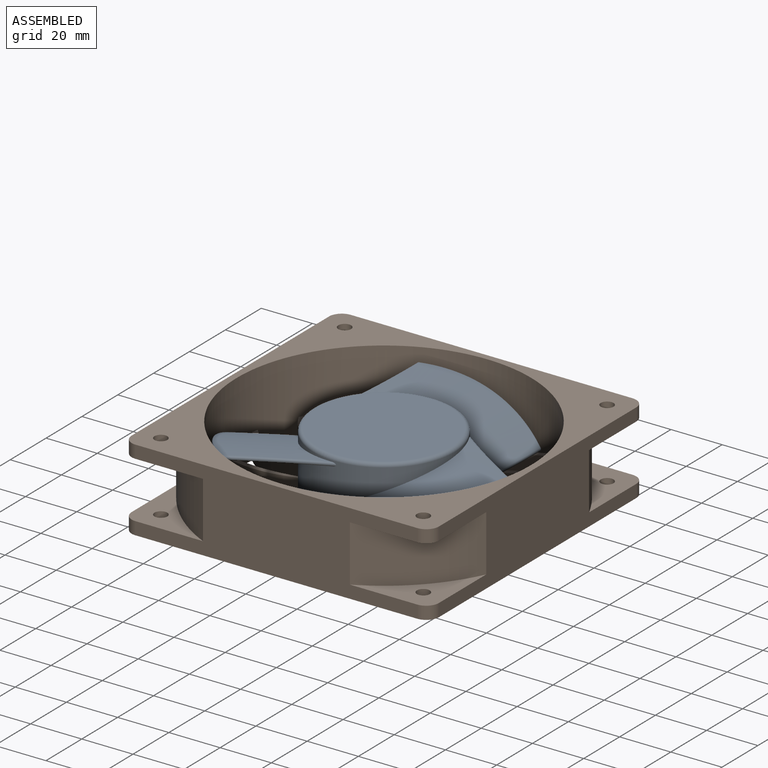
[diagram: assembled view]
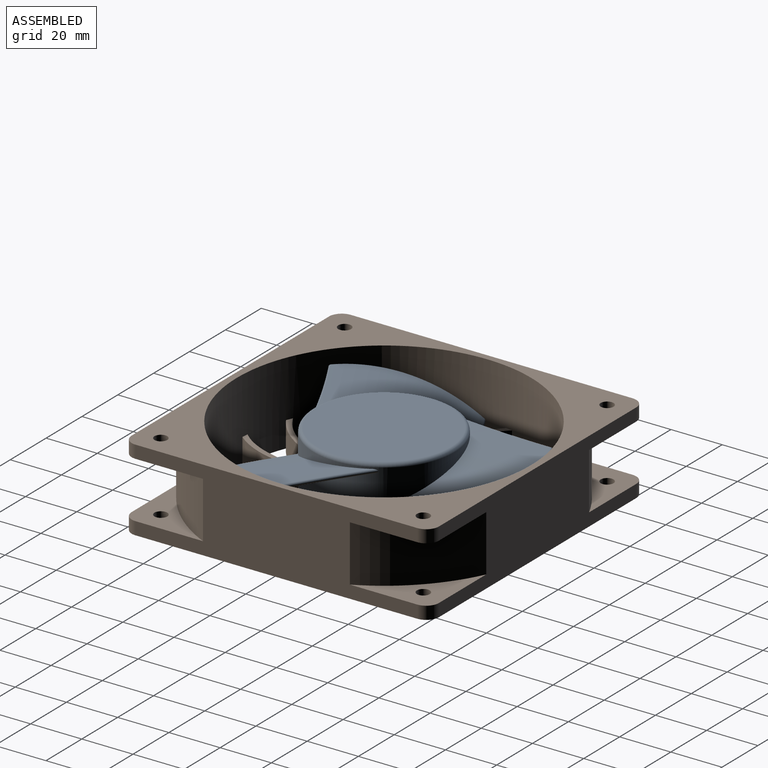
[diagram: assembled view, second angle]
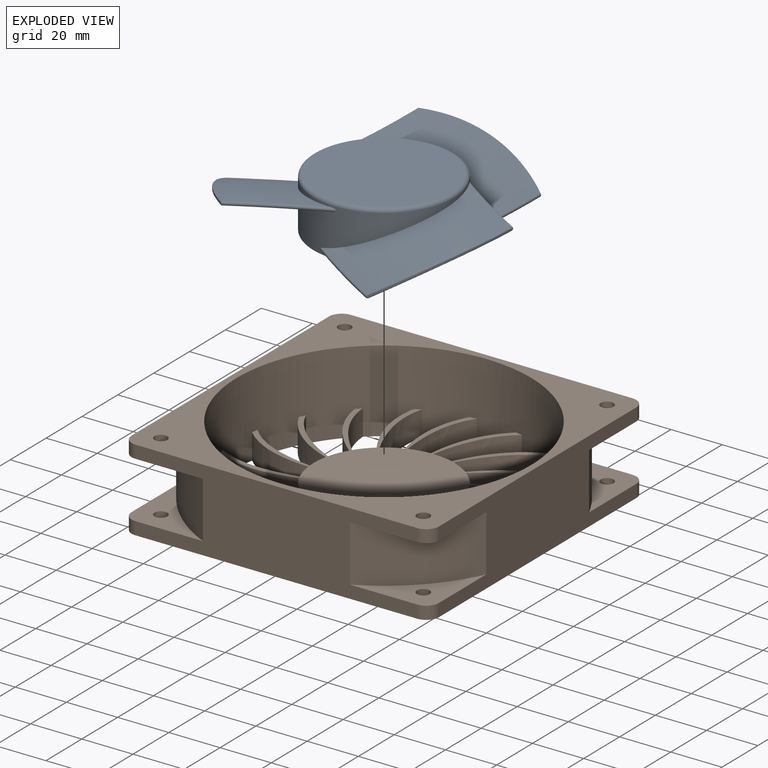
[diagram: exploded view]
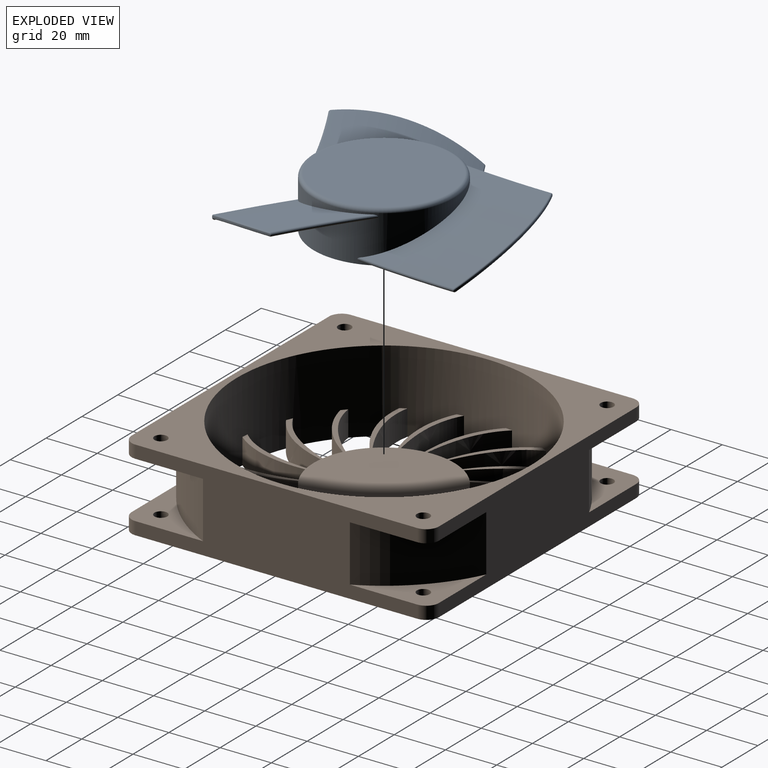
[diagram: exploded view, second angle]
FCSTD DOCUMENT  (FreeCAD 1.0R39109 (Git))
Label: Lüfter120x120x32
License: All rights reserved
LicenseURL: https://en.wikipedia.org/wiki/All_rights_reserved
objects: Sketcher::SketchObject×7, PartDesign::Groove×2, PartDesign::PolarPattern×2, PartDesign::Body×2, PartDesign::Fillet×2, App::Link×2, App::FeaturePython×2, PartDesign::Pad×1, PartDesign::Pocket×1, PartDesign::Revolution×1, PartDesign::Plane×1, PartDesign::AdditivePipe×1, Assembly::JointGroup×1, Assembly::AssemblyObject×1
note: 45 computed .brp shape members not serialized (recipe doc carries the construction recipe); baked Part::Feature solids carry a one-line shape summary decoded from their .brp

FEATURE [Sketcher::SketchObject] Sketch
  ArcFitTolerance = 1e-06
  AttachmentSupport = -> [XY_Plane]
  FullyConstrained = true
  MakeInternals = false
  MapMode = 5
  sketch-geometry (22):
    g0: LineSegment StartX=-55 StartY=-60 StartZ=0 EndX=55 EndY=-60 EndZ=0
    g1: LineSegment StartX=60 StartY=-55 StartZ=0 EndX=60 EndY=55 EndZ=0
    g2: LineSegment StartX=55 StartY=60 StartZ=0 EndX=-55 EndY=60 EndZ=0
    g3: LineSegment StartX=-60 StartY=55 StartZ=0 EndX=-60 EndY=-55 EndZ=0
    g4: GeomPoint [constr] X=7e-16 Y=1e-15 Z=0
    g5: ArcOfCircle CenterX=55 CenterY=55 CenterZ=0 NormalX=0 NormalY=0 NormalZ=1 AngleXU=0 Radius=5 StartAngle=6e-16 EndAngle=1.5708
    g6: GeomPoint [constr] X=60 Y=60 Z=0
    g7: ArcOfCircle CenterX=55 CenterY=-55 CenterZ=0 NormalX=0 NormalY=0 NormalZ=1 AngleXU=0 Radius=5 StartAngle=4.71239 EndAngle=6.28319
    g8: GeomPoint [constr] X=60 Y=-60 Z=0
    g9: ArcOfCircle CenterX=-55 CenterY=-55 CenterZ=0 NormalX=0 NormalY=0 NormalZ=1 AngleXU=0 Radius=5 StartAngle=3.14159 EndAngle=4.71239
    g10: GeomPoint [constr] X=-60 Y=-60 Z=0
    g11: ArcOfCircle CenterX=-55 CenterY=55 CenterZ=0 NormalX=0 NormalY=0 NormalZ=1 AngleXU=0 Radius=5 StartAngle=1.5708 EndAngle=3.14159
    g12: GeomPoint [constr] X=-60 Y=60 Z=0
    g13: LineSegment [constr] StartX=51.25 StartY=-51.25 StartZ=0 EndX=51.25 EndY=51.25 EndZ=0
    g14: LineSegment [constr] StartX=51.25 StartY=51.25 StartZ=0 EndX=-51.25 EndY=51.25 EndZ=0
    g15: LineSegment [constr] StartX=-51.25 StartY=51.25 StartZ=0 EndX=-51.25 EndY=-51.25 EndZ=0
    g16: LineSegment [constr] StartX=-51.25 StartY=-51.25 StartZ=0 EndX=51.25 EndY=-51.25 EndZ=0
    g17: GeomPoint [constr] X=7e-16 Y=1e-15 Z=0
    g18: Circle CenterX=-51.25 CenterY=51.25 CenterZ=0 NormalX=0 NormalY=0 NormalZ=1 AngleXU=0 Radius=2.5
    g19: Circle CenterX=51.25 CenterY=51.25 CenterZ=0 NormalX=0 NormalY=0 NormalZ=1 AngleXU=0 Radius=2.5
    g20: Circle CenterX=51.25 CenterY=-51.25 CenterZ=0 NormalX=0 NormalY=0 NormalZ=1 AngleXU=0 Radius=2.5
    g21: Circle CenterX=-51.25 CenterY=-51.25 CenterZ=0 NormalX=0 NormalY=0 NormalZ=1 AngleXU=0 Radius=2.5
  constraints (48):
    c: Horizontal(g0)
    c: Horizontal(g2)
    c: Vertical(g1)
    c: Vertical(g3)
    c: Symmetric(g6,g10,g4)
    c: Distance(g8,g10) = 120
    c: Coincident(g4,g-1)
    c: PointOnObject(g6,g1)
    c: PointOnObject(g6,g2)
    c: Tangent(g1,g5) = -1.5708
    c: Tangent(g2,g5) = -1.5708
    c: PointOnObject(g8,g0)
    c: PointOnObject(g8,g1)
    c: Tangent(g0,g7) = -1.5708
    c: Tangent(g1,g7) = -1.5708
    c: PointOnObject(g10,g0)
    c: PointOnObject(g10,g3)
    c: Tangent(g0,g9) = -1.5708
    c: Tangent(g3,g9) = -1.5708
    c: PointOnObject(g12,g2)
    c: PointOnObject(g12,g3)
    c: Tangent(g2,g11) = -1.5708
    c: Tangent(g3,g11) = -1.5708
    c: Equal(g11,g5)
    c: Equal(g5,g7)
    c: Equal(g7,g9)
    c: Radius(g11) = 5
    c: Equal(g0,g1)
    c: Coincident(g13,g14)
    c: Coincident(g14,g15)
    c: Coincident(g15,g16)
    c: Coincident(g16,g13)
    c: Vertical(g13)
    c: Vertical(g15)
    c: Horizontal(g14)
    c: Horizontal(g16)
    c: Symmetric(g15,g13,g17)
    c: Coincident(g17,g4)
    c: Equal(g15,g14)
    c: Coincident(g18,g14)
    c: Coincident(g19,g13)
    c: Coincident(g20,g13)
    c: Coincident(g21,g15)
    c: Equal(g21,g19)
    c: Equal(g19,g18)
    c: Equal(g21,g20)
    c: Diameter(g20) = 5
    c: Distance(g13,g19) = 100
FEATURE [PartDesign::Pad] Pad
  Direction = (0,0,1)
  Length = 32
  Length2 = 10
  Midplane = true
  Profile = -> Sketch
  ReferenceAxis = -> Sketch [N_Axis]
  Refine = true
  Suppressed = false
  Type = 0
FEATURE [Sketcher::SketchObject] Sketch001
  ArcFitTolerance = 1e-06
  AttachmentSupport = -> [YZ_Plane]
  ExternalGeometry = -> [Pad]
  FullyConstrained = true
  MakeInternals = false
  MapMode = 5
  Placement = pos=(0,0,0) rot=(0.57735,0.57735,0.57735;2.0944rad)
  sketch-geometry (9):
    g0: LineSegment StartX=-88.5 StartY=-11 StartZ=0 EndX=-66.5 EndY=-11 EndZ=0
    g1: LineSegment StartX=-66.5 StartY=-11 StartZ=0 EndX=-66.5 EndY=11 EndZ=0
    g2: LineSegment StartX=-66.5 StartY=11 StartZ=0 EndX=-88.5 EndY=11 EndZ=0
    g3: LineSegment StartX=-88.5 StartY=11 StartZ=0 EndX=-88.5 EndY=-11 EndZ=0
    g4: GeomPoint [constr] X=-77.5 Y=0 Z=0
    g5: LineSegment StartX=0 StartY=16 StartZ=0 EndX=-57.5 EndY=16 EndZ=0
    g6: LineSegment StartX=-57.5 StartY=16 StartZ=0 EndX=-57.5 EndY=-6 EndZ=0
    g7: LineSegment StartX=-57.5 StartY=-6 StartZ=0 EndX=0 EndY=-6 EndZ=0
    g8: LineSegment StartX=0 StartY=-6 StartZ=0 EndX=0 EndY=16 EndZ=0
  constraints (25):
    c: Coincident(g0,g1)
    c: Coincident(g1,g2)
    c: Coincident(g2,g3)
    c: Coincident(g3,g0)
    c: Horizontal(g0)
    c: Horizontal(g2)
    c: Vertical(g1)
    c: Vertical(g3)
    c: Symmetric(g2,g0,g4)
    c: PointOnObject(g4,g-1)
    c: Equal(g1,g2)
    c: DistanceY(g3,g3) = 22
    c: Distance(g-1,g1) = 66.5
    c: Coincident(g5,g6)
    c: Coincident(g6,g7)
    c: Coincident(g7,g8)
    c: Coincident(g8,g5)
    c: Horizontal(g5)
    c: Horizontal(g7)
    c: Vertical(g6)
    c: Vertical(g8)
    c: PointOnObject(g5,g-2)
    c: Distance(g-1,g6) = 57.5
    c: Distance(g-3,g7) = 10
    c: PointOnObject(g-4,g5)
FEATURE [PartDesign::Groove] Groove
  Angle = 360
  Angle2 = 60
  Axis = (0,0,1)
  Base = (0,0,0)
  BaseFeature = -> Pad
  Profile = -> Sketch001
  ReferenceAxis = -> Sketch001 [V_Axis]
  Refine = true
  Reversed = true
  Suppressed = false
  Type = 0
FEATURE [Sketcher::SketchObject] Sketch002
  ArcFitTolerance = 1e-06
  AttachmentSupport = -> [Groove]
  ExternalGeometry = -> [Groove]
  FullyConstrained = true
  MakeInternals = false
  MapMode = 5
  Placement = pos=(0,0,-6) rot=(0,0,1;0rad)
  sketch-geometry (17):
    g0: Circle [constr] CenterX=0 CenterY=0 CenterZ=0 NormalX=0 NormalY=0 NormalZ=1 AngleXU=0 Radius=27.5
    g1: Circle [constr] CenterX=0 CenterY=0 CenterZ=0 NormalX=0 NormalY=0 NormalZ=1 AngleXU=0 Radius=57.5
    g2: LineSegment [constr] StartX=0 StartY=0 StartZ=0 EndX=0 EndY=27.5 EndZ=0
    g3: Circle [constr] CenterX=0 CenterY=27.5 CenterZ=0 NormalX=0 NormalY=0 NormalZ=1 AngleXU=0 Radius=1
    g4: Circle [constr] CenterX=4.25 CenterY=47.76 CenterZ=0 NormalX=0 NormalY=0 NormalZ=1 AngleXU=0 Radius=1
    g5: Circle [constr] CenterX=15 CenterY=55.509 CenterZ=0 NormalX=0 NormalY=0 NormalZ=1 AngleXU=0 Radius=1
    g6: BSplineCurve PolesCount=3 KnotsCount=2 Degree=2 IsPeriodic=0
    g7: GeomPoint [constr] X=0 Y=27.5 Z=0
    g8: GeomPoint [constr] X=15 Y=55.509 Z=0
    g9: Circle [constr] CenterX=8 CenterY=26.3106 CenterZ=0 NormalX=0 NormalY=0 NormalZ=1 AngleXU=0 Radius=1
    g10: Circle [constr] CenterX=15.75 CenterY=43.17 CenterZ=0 NormalX=0 NormalY=0 NormalZ=1 AngleXU=0 Radius=1
    g11: Circle [constr] CenterX=30 CenterY=49.0536 CenterZ=0 NormalX=0 NormalY=0 NormalZ=1 AngleXU=0 Radius=1
    g12: BSplineCurve PolesCount=3 KnotsCount=2 Degree=2 IsPeriodic=0
    g13: GeomPoint [constr] X=8 Y=26.3106 Z=0
    g14: GeomPoint [constr] X=30 Y=49.0536 Z=0
    g15: ArcOfCircle CenterX=-2.2e-15 CenterY=-3.54e-14 CenterZ=0 NormalX=0 NormalY=0 NormalZ=1 AngleXU=0 Radius=27.5 StartAngle=1.27562 EndAngle=1.5708
    g16: ArcOfCircle CenterX=-2.2e-15 CenterY=-3.54e-14 CenterZ=0 NormalX=0 NormalY=0 NormalZ=1 AngleXU=0 Radius=57.5 StartAngle=1.02191 EndAngle=1.30687
  constraints (40):
    c: Diameter(g0) = 55
    c: Coincident(g0,g-1)
    c: Coincident(g1,g0)
    c: Coincident(g2,g0)
    c: PointOnObject(g2,g0)
    c: Vertical(g2)
    c: Weight(g3) = 1
    c: Equal(g3,g4)
    c: Equal(g3,g5)
    c: InternalAlignment(g3,g6)
    c: InternalAlignment(g4,g6)
    c: InternalAlignment(g5,g6)
    c: InternalAlignment(g7,g6)
    c: InternalAlignment(g8,g6)
    c: Coincident(g3,g2)
    c: PointOnObject(g5,g1)
    c: DistanceX(g6,g6) = 15
    c: Weight(g9) = 1
    c: Equal(g9,g10)
    c: Equal(g9,g11)
    c: InternalAlignment(g9,g12)
    c: InternalAlignment(g10,g12)
    c: InternalAlignment(g11,g12)
    c: InternalAlignment(g13,g12)
    c: InternalAlignment(g14,g12)
    c: PointOnObject(g9,g0)
    c: PointOnObject(g11,g1)
    c: DistanceX(g6,g12) = 15
    c: DistanceX(g6,g12) = 8
    c: DistanceX(g4,g10) = 11.5
    c: Coincident(g16,g15)
    c: Coincident(g16,g6)
    c: Coincident(g16,g12)
    c: Distance(g4,g-2) = 4.25
    c: DistanceY(g6,g4) = 20.26
    c: DistanceY(g6,g10) = 15.67
    c: DistanceX(g15,g12) = 30
    c: PointOnObject(g6,g15)
    c: Coincident(g15,g12)
    c: Tangent(g1,g-3)
FEATURE [PartDesign::Pocket] Pocket
  BaseFeature = -> Groove
  Direction = (0,0,-1)
  Length = 5
  Length2 = 5
  Profile = -> Sketch002
  ReferenceAxis = -> Sketch002 [N_Axis]
  Refine = true
  Suppressed = false
  Type = 1
FEATURE [PartDesign::PolarPattern] PolarPattern
  Angle = 360
  Axis = -> Sketch002 [N_Axis]
  BaseFeature = -> Pocket
  Mode = 0
  Occurrences = 19
  Offset = 120
  Originals = -> [Pocket]
  Refine = true
  Suppressed = false
  TransformMode = 0
FEATURE [PartDesign::Body] Body  label="Stator"
  AllowCompound = false
  Group = -> [Sketch,Pad,Sketch001,Groove,Sketch002,Pocket,PolarPattern]
  Origin = -> Origin
  Tip = -> PolarPattern
FEATURE [Sketcher::SketchObject] Sketch003
  ArcFitTolerance = 1e-06
  AttachmentSupport = -> [YZ_Plane001]
  FullyConstrained = true
  MakeInternals = false
  MapMode = 5
  Placement = pos=(0,0,0) rot=(0.57735,0.57735,0.57735;2.0944rad)
  sketch-geometry (4):
    g0: LineSegment StartX=0 StartY=20 StartZ=0 EndX=-27.5 EndY=20 EndZ=0
    g1: LineSegment StartX=-27.5 StartY=20 StartZ=0 EndX=-27.5 EndY=0 EndZ=0
    g2: LineSegment StartX=-27.5 StartY=0 StartZ=0 EndX=0 EndY=0 EndZ=0
    g3: LineSegment StartX=0 StartY=0 StartZ=0 EndX=0 EndY=20 EndZ=0
  constraints (11):
    c: Coincident(g0,g1)
    c: Coincident(g1,g2)
    c: Coincident(g2,g3)
    c: Coincident(g3,g0)
    c: Horizontal(g0)
    c: Horizontal(g2)
    c: Vertical(g1)
    c: Vertical(g3)
    c: DistanceY(g1,g1) = 20
    c: Distance(g3,g1) = 27.5
    c: Coincident(g2,g-1)
FEATURE [PartDesign::Revolution] Revolution
  Angle = 360
  Angle2 = 60
  Axis = (0,0,1)
  Base = (0,0,0)
  Placement = pos=(0,0,0) rot=(1,1,1;2.0944rad)
  Profile = -> Sketch003
  ReferenceAxis = -> Sketch003 [V_Axis]
  Refine = true
  Suppressed = false
  Type = 0
FEATURE [Sketcher::SketchObject] Sketch004
  ArcFitTolerance = 1e-06
  AttachmentSupport = -> [YZ_Plane001]
  ExternalGeometry = -> [Revolution]
  FullyConstrained = true
  MakeInternals = false
  MapMode = 5
  Placement = pos=(0,0,0) rot=(0.57735,0.57735,0.57735;2.0944rad)
  sketch-geometry (10):
    g0: ArcOfCircle CenterX=-24.468 CenterY=1.7475 CenterZ=0 NormalX=0 NormalY=0 NormalZ=1 AngleXU=0 Radius=0.75 StartAngle=2.11114 EndAngle=5.25274
    g1: ArcOfCircle CenterX=24.7972 CenterY=17.2032 CenterZ=0 NormalX=0 NormalY=0 NormalZ=1 AngleXU=0 Radius=0.75 StartAngle=4.78005 EndAngle=7.92164
    g2: ArcOfCircle CenterX=32.251 CenterY=-92.8 CenterZ=0 NormalX=0 NormalY=0 NormalZ=1 AngleXU=0 Radius=111.005 StartAngle=1.63845 EndAngle=2.11114
    g3: ArcOfCircle CenterX=32.251 CenterY=-92.8 CenterZ=0 NormalX=0 NormalY=0 NormalZ=1 AngleXU=0 Radius=109.505 StartAngle=1.63845 EndAngle=2.11114
    g4: LineSegment [constr] StartX=-25.5 StartY=2 StartZ=0 EndX=-24.7196 EndY=0.718982 EndZ=0
    g5: LineSegment [constr] StartX=25.5912 StartY=16.5028 StartZ=0 EndX=25.5 EndY=18 EndZ=0
    g6: ArcOfCircle [constr] CenterX=32.251 CenterY=-92.8 CenterZ=0 NormalX=0 NormalY=0 NormalZ=1 AngleXU=0 Radius=111.005 StartAngle=2.11114 EndAngle=2.11794
    g7: ArcOfCircle [constr] CenterX=32.251 CenterY=-92.8 CenterZ=0 NormalX=0 NormalY=0 NormalZ=1 AngleXU=0 Radius=111.005 StartAngle=1.63165 EndAngle=1.63845
    g8: ArcOfCircle [constr] CenterX=32.251 CenterY=-92.8 CenterZ=0 NormalX=0 NormalY=0 NormalZ=1 AngleXU=0 Radius=109.505 StartAngle=2.11114 EndAngle=2.11794
    g9: ArcOfCircle [constr] CenterX=32.251 CenterY=-92.8 CenterZ=0 NormalX=0 NormalY=0 NormalZ=1 AngleXU=0 Radius=109.505 StartAngle=1.63165 EndAngle=1.63845
  constraints (28):
    c: Diameter(g0) = 1.5
    c: Equal(g1,g0)
    c: Distance(g4,g-4) = 2
    c: DistanceX(g-4,g4) = 2
    c: Distance(g5,g-3) = 2
    c: DistanceX(g5,g-3) = 2
    c: Coincident(g2,g3)
    c: Perpendicular(g2,g4)
    c: Perpendicular(g2,g5)
    c: Tangent(g1,g5)
    c: Tangent(g0,g4)
    c: DistanceY(g2,g-1) = 92.8
    c: Tangent(g2,g1) = -1.5708
    c: Tangent(g3,g1) = 1.5708
    c: Coincident(g3,g0)
    c: Tangent(g2,g0) = -1.5708
    c: Coincident(g6,g2)
    c: Coincident(g6,g4)
    c: Coincident(g6,g0)
    c: Coincident(g7,g2)
    c: Coincident(g7,g1)
    c: Coincident(g7,g5)
    c: Coincident(g8,g2)
    c: Coincident(g8,g4)
    c: Coincident(g8,g0)
    c: Coincident(g9,g2)
    c: Coincident(g9,g1)
    c: Coincident(g9,g5)
FEATURE [PartDesign::Plane] DatumPlane
  AttachmentSupport = -> [Sketch004]
  Length = 126.155
  MapMode = 1
  Placement = pos=(0,24.7465,17.9515) rot=(0,0,1;0rad)
  ResizeMode = 0
  Width = 130.486
FEATURE [Sketcher::SketchObject] Sketch005
  ArcFitTolerance = 1e-06
  AttachmentSupport = -> [DatumPlane]
  FullyConstrained = true
  MakeInternals = false
  MapMode = 5
  Placement = pos=(0,24.7465,17.9515) rot=(0,0,1;0rad)
  sketch-geometry (1):
    g0: ArcOfCircle CenterX=-23.8322 CenterY=349.188 CenterZ=0 NormalX=0 NormalY=0 NormalZ=1 AngleXU=0 Radius=350 StartAngle=4.78053 EndAngle=4.9838
  constraints (4):
    c: Coincident(g0,g-1)
    c: DistanceX(g0,g0) = 70
    c: DistanceY(g0,g0) = 12
    c: Radius(g0) = 350
FEATURE [PartDesign::AdditivePipe] AdditivePipe
  AuxilleryCurvelinear = true
  AuxillerySpineTangent = false
  BaseFeature = -> Revolution
  Binormal = (0,0,0)
  Mode = 0
  Placement = pos=(0,0,0) rot=(1,1,1;2.0944rad)
  Profile = -> Sketch004
  Refine = true
  Spine = -> Sketch005
  SpineTangent = false
  Suppressed = false
  Transformation = 0
  Transition = 0
FEATURE [PartDesign::PolarPattern] PolarPattern001
  Angle = 360
  Axis = -> Sketch004 [V_Axis]
  BaseFeature = -> AdditivePipe
  Mode = 0
  Occurrences = 3
  Offset = 120
  Originals = -> [AdditivePipe]
  Placement = pos=(0,0,0) rot=(1,1,1;2.0944rad)
  Refine = true
  Suppressed = false
  TransformMode = 0
FEATURE [Sketcher::SketchObject] Sketch006
  ArcFitTolerance = 1e-06
  AttachmentSupport = -> [XZ_Plane001]
  ExternalGeometry = -> [PolarPattern001]
  FullyConstrained = true
  MakeInternals = false
  MapMode = 5
  Placement = pos=(0,0,0) rot=(1,0,0;1.5708rad)
  sketch-geometry (4):
    g0: LineSegment StartX=90 StartY=20 StartZ=0 EndX=55 EndY=20 EndZ=0
    g1: LineSegment StartX=55 StartY=20 StartZ=0 EndX=55 EndY=0 EndZ=0
    g2: LineSegment StartX=55 StartY=0 StartZ=0 EndX=90 EndY=0 EndZ=0
    g3: LineSegment StartX=90 StartY=0 StartZ=0 EndX=90 EndY=20 EndZ=0
  constraints (12):
    c: Coincident(g0,g1)
    c: Coincident(g1,g2)
    c: Coincident(g2,g3)
    c: Coincident(g3,g0)
    c: Horizontal(g0)
    c: Horizontal(g2)
    c: Vertical(g1)
    c: Vertical(g3)
    c: PointOnObject(g1,g-1)
    c: Horizontal(g0,g-4)
    c: Distance(g1,g-2) = 55
    c: DistanceX(g0,g0) = 35
FEATURE [PartDesign::Groove] Groove001
  Angle = 360
  Angle2 = 60
  Axis = (0,2e-16,1)
  Base = (0,0,0)
  BaseFeature = -> PolarPattern001
  Placement = pos=(0,0,0) rot=(1,1,1;2.0944rad)
  Profile = -> Sketch006
  ReferenceAxis = -> Sketch006 [V_Axis]
  Refine = true
  Suppressed = false
  Type = 0
FEATURE [PartDesign::Fillet] Fillet
  Base = -> Groove001 [Edge1]
  BaseFeature = -> Groove001
  Placement = pos=(0,0,0) rot=(1,1,1;2.0944rad)
  Radius = 1.5
  Refine = true
  SupportTransform = false
  Suppressed = false
  UseAllEdges = false
FEATURE [PartDesign::Fillet] Fillet001
  Base = -> Fillet [Edge38,Edge36,Edge30,Edge37,Edge31,Edge33,Edge42,Edge44,Edge40,Edge46,Edge28,Edge26,Edge22,Edge24]
  BaseFeature = -> Fillet
  Placement = pos=(0,0,0) rot=(1,1,1;2.0944rad)
  Radius = 0.5
  Refine = true
  SupportTransform = false
  Suppressed = false
  UseAllEdges = false
FEATURE [PartDesign::Body] Body001  label="Rotor"
  AllowCompound = false
  Group = -> [Sketch003,Revolution,Sketch004,DatumPlane,Sketch005,AdditivePipe,PolarPattern001,Sketch006,Groove001,Fillet,Fillet001]
  Origin = -> Origin001
  Tip = -> Fillet001
FEATURE [App::Link] Stator  label="Stator001"
  LinkedObject = -> Body
FEATURE [App::FeaturePython] GroundedJoint  # Assembly grounded joint (typed FeaturePython)
  ObjectToGround = -> Stator
FEATURE [App::Link] Rotor  label="Rotor001"
  LinkPlacement = pos=(1.84e-14,3.19e-14,-6) rot=(0,0,-1;0.719694rad)
  LinkedObject = -> Body001
  Placement = pos=(1.84e-14,3.19e-14,-6) rot=(0,0,-1;0.719694rad)
FEATURE [App::FeaturePython] Joint  label="Revolute"  # Assembly joint (typed FeaturePython)
  Activated = true
  AngleMax = 0
  AngleMin = 0
  Detach1 = false
  Detach2 = false
  Distance = 0
  Distance2 = 0
  EnableAngleMax = false
  EnableAngleMin = false
  EnableLengthMax = false
  EnableLengthMin = false
  JointType = 1 (Revolute)
  LengthMax = 0
  LengthMin = 0
  Placement1 = pos=(1.88e-14,3.01e-14,-6) rot=(-0.707107,0.707107,0;3.14159rad)
  Placement2 = pos=(3e-16,5e-15,6.2e-15) rot=(0,0,1;4.71239rad)
  Reference1 = -> Assembly [Stator.Face112,Stator.Edge34]
  Reference2 = -> Assembly [Rotor.Face11,Rotor.Face11]
FEATURE [Assembly::JointGroup] Joints
  Group = -> [GroundedJoint,Joint]
FEATURE [Assembly::AssemblyObject] Assembly
  Group = -> [Joints,Stator,GroundedJoint,Rotor,Joint]
  Origin = -> Origin002
  Type = Assembly
